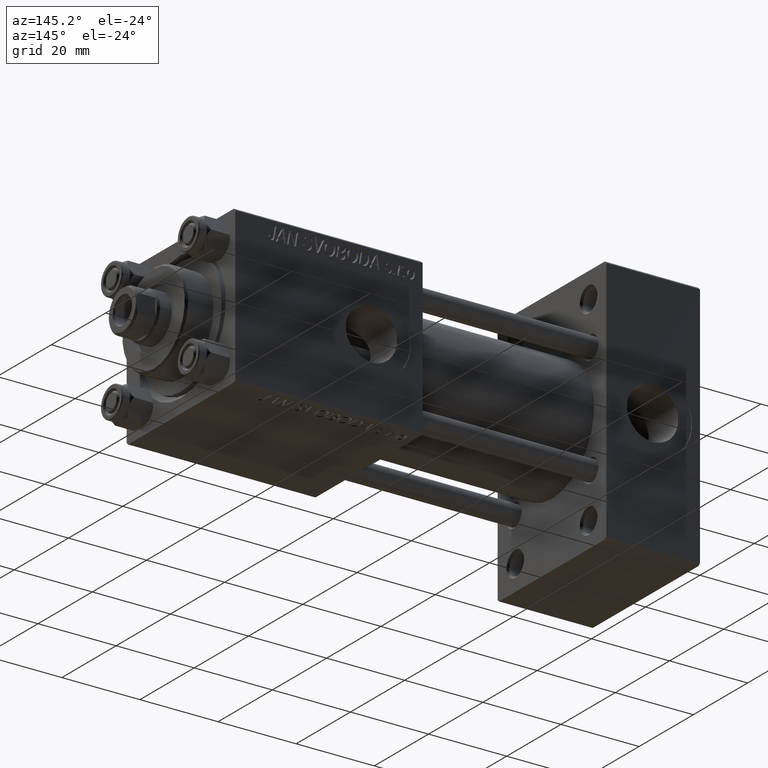
[diagram: clean part render]
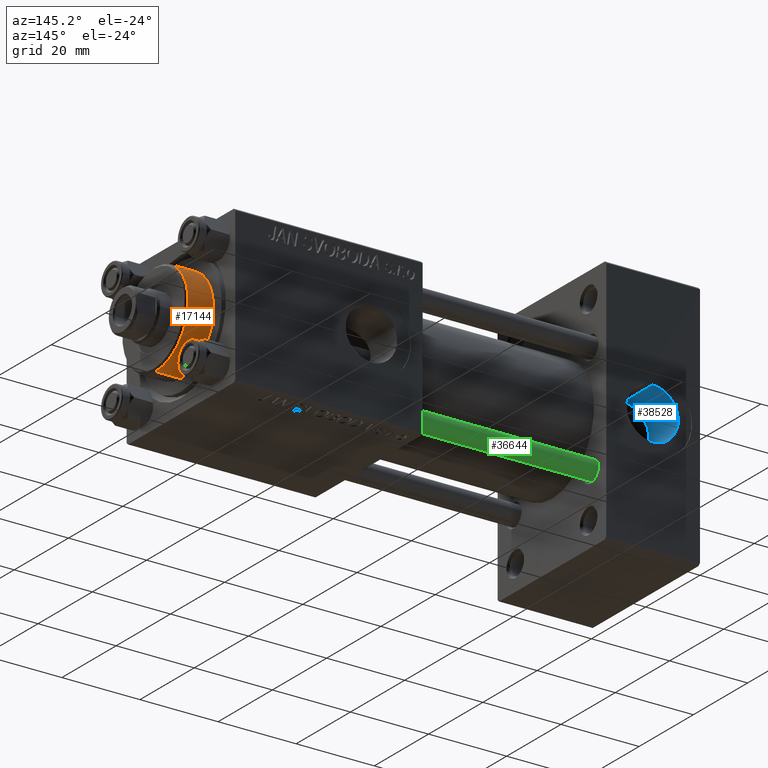
[diagram: same view with three faces highlighted in distinct colors, each labeled with its STEP entity id]
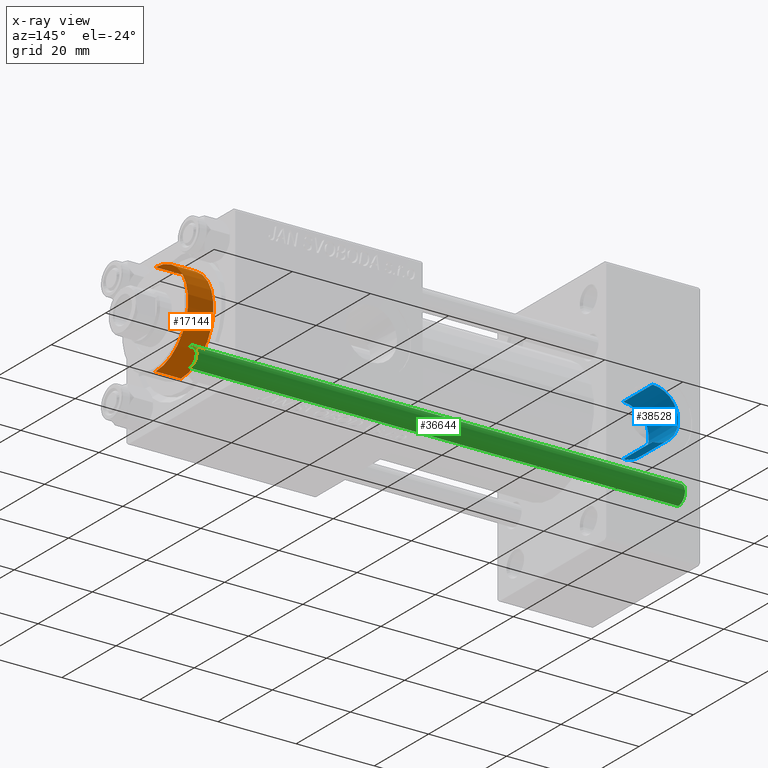
[diagram: x-ray of the same camera — body ghosted, the three highlighted faces saturated]
A machine part, auxiliary view with three faces highlighted in distinct colors.
The next image is the same camera in x-ray (body ghosted, the three faces saturated) — at least one of them is partly hidden behind the body in this view.
Their STEP definitions:

[orange] entity #17144 — the highlighted cylindrical surface (partial cylindrical patch) has radius 12 mm, axis along (-1, -0, 0).
#4748 = DIRECTION ( 'NONE',  ( 1.000000000000000000, 0.000000000000000000, 0.000000000000000000 ) ) ;
#5452 = DIRECTION ( 'NONE',  ( -0.000000000000000000, -0.000000000000000000, -1.000000000000000000 ) ) ;
#5938 = EDGE_LOOP ( 'NONE', ( #49564, #40014, #39124, #9059 ) ) ;
#5982 = DIRECTION ( 'NONE',  ( 0.000000000000000000, 0.000000000000000000, 1.000000000000000000 ) ) ;
#6105 = DIRECTION ( 'NONE',  ( -0.000000000000000000, -0.000000000000000000, -1.000000000000000000 ) ) ;
#6506 = EDGE_CURVE ( 'NONE', #17289, #29973, #47359, .T. ) ;
#8108 = CARTESIAN_POINT ( 'NONE',  ( 12.00000000000000178, 1.469576158976824144E-15, 35.70000000000000284 ) ) ;
#8427 = CIRCLE ( 'NONE', #36640, 12.00000000000000178 ) ;
#8535 = DIRECTION ( 'NONE',  ( 0.000000000000000000, 0.000000000000000000, -1.000000000000000000 ) ) ;
#9059 = ORIENTED_EDGE ( 'NONE', *, *, #6506, .F. ) ;
#13620 = CARTESIAN_POINT ( 'NONE',  ( 12.00000000000000178, 1.469576158976824144E-15, 35.19999999999999574 ) ) ;
#15570 = CARTESIAN_POINT ( 'NONE',  ( 12.00000000000000178, 1.469576158976824144E-15, 28.69999999999999929 ) ) ;
#17144 = ADVANCED_FACE ( 'NONE', ( #17715 ), #22237, .T. ) ;
#17289 = VERTEX_POINT ( 'NONE', #42178 ) ;
#17490 = VERTEX_POINT ( 'NONE', #13620 ) ;
#17715 = FACE_OUTER_BOUND ( 'NONE', #5938, .T. ) ;
#19854 = CIRCLE ( 'NONE', #39227, 12.00000000000000178 ) ;
#22237 = CYLINDRICAL_SURFACE ( 'NONE', #33957, 12.00000000000000178 ) ;
#22548 = CARTESIAN_POINT ( 'NONE',  ( 0.000000000000000000, 0.000000000000000000, 28.69999999999999929 ) ) ;
#23458 = VERTEX_POINT ( 'NONE', #15570 ) ;
#24629 = CARTESIAN_POINT ( 'NONE',  ( -12.00000000000000178, 0.000000000000000000, 35.70000000000000284 ) ) ;
#27535 = DIRECTION ( 'NONE',  ( -0.000000000000000000, -0.000000000000000000, -1.000000000000000000 ) ) ;
#28830 = CARTESIAN_POINT ( 'NONE',  ( 0.000000000000000000, 0.000000000000000000, 35.70000000000000284 ) ) ;
#29728 = VECTOR ( 'NONE', #5452, 1000.000000000000000 ) ;
#29973 = VERTEX_POINT ( 'NONE', #37152 ) ;
#33957 = AXIS2_PLACEMENT_3D ( 'NONE', #28830, #6105, #49251 ) ;
#33973 = EDGE_CURVE ( 'NONE', #23458, #29973, #19854, .T. ) ;
#35870 = LINE ( 'NONE', #8108, #48706 ) ;
#36640 = AXIS2_PLACEMENT_3D ( 'NONE', #46901, #8535, #4748 ) ;
#37152 = CARTESIAN_POINT ( 'NONE',  ( -12.00000000000000178, 0.000000000000000000, 28.69999999999999929 ) ) ;
#38745 = EDGE_CURVE ( 'NONE', #17490, #23458, #35870, .T. ) ;
#39124 = ORIENTED_EDGE ( 'NONE', *, *, #33973, .T. ) ;
#39227 = AXIS2_PLACEMENT_3D ( 'NONE', #22548, #5982, #45773 ) ;
#39951 = EDGE_CURVE ( 'NONE', #17289, #17490, #8427, .T. ) ;
#40014 = ORIENTED_EDGE ( 'NONE', *, *, #38745, .T. ) ;
#42178 = CARTESIAN_POINT ( 'NONE',  ( -12.00000000000000178, 0.000000000000000000, 35.19999999999999574 ) ) ;
#45773 = DIRECTION ( 'NONE',  ( 1.000000000000000000, 0.000000000000000000, 0.000000000000000000 ) ) ;
#46901 = CARTESIAN_POINT ( 'NONE',  ( 0.000000000000000000, 0.000000000000000000, 35.19999999999999574 ) ) ;
#47359 = LINE ( 'NONE', #24629, #29728 ) ;
#48706 = VECTOR ( 'NONE', #27535, 1000.000000000000000 ) ;
#49251 = DIRECTION ( 'NONE',  ( -1.000000000000000000, 0.000000000000000000, 0.000000000000000000 ) ) ;
#49564 = ORIENTED_EDGE ( 'NONE', *, *, #39951, .T. ) ;

[blue] entity #38528 — the highlighted cylindrical surface (edge-blend (fillet) strip) has radius 6.58 mm, axis along (0, 1, 0).
#395 = CARTESIAN_POINT ( 'NONE',  ( 12.00000000000000000, 8.999999999999998224, 6.579999999999998295 ) ) ;
#4408 = CIRCLE ( 'NONE', #43962, 6.579999999999998295 ) ;
#4442 = DIRECTION ( 'NONE',  ( -0.000000000000000000, -1.000000000000000000, -0.000000000000000000 ) ) ;
#4747 = LINE ( 'NONE', #11382, #22384 ) ;
#7555 = VERTEX_POINT ( 'NONE', #24463 ) ;
#8385 = AXIS2_PLACEMENT_3D ( 'NONE', #44989, #25536, #40946 ) ;
#9590 = CARTESIAN_POINT ( 'NONE',  ( 12.00000000000000000, 19.79999999999999716, -6.579999999999998295 ) ) ;
#11382 = CARTESIAN_POINT ( 'NONE',  ( 12.00000000000000000, 8.999999999999998224, -6.579999999999998295 ) ) ;
#15108 = DIRECTION ( 'NONE',  ( 0.000000000000000000, 1.000000000000000000, 0.000000000000000000 ) ) ;
#16465 = CARTESIAN_POINT ( 'NONE',  ( 12.00000000000000000, 8.939999999999994174, 6.579999999999998295 ) ) ;
#17437 = VERTEX_POINT ( 'NONE', #9590 ) ;
#17942 = EDGE_CURVE ( 'NONE', #42800, #7555, #35491, .T. ) ;
#19463 = VECTOR ( 'NONE', #35995, 1000.000000000000000 ) ;
#19878 = DIRECTION ( 'NONE',  ( -0.000000000000000000, 1.000000000000000000, -0.000000000000000000 ) ) ;
#22384 = VECTOR ( 'NONE', #19878, 1000.000000000000000 ) ;
#23090 = ORIENTED_EDGE ( 'NONE', *, *, #31416, .T. ) ;
#24463 = CARTESIAN_POINT ( 'NONE',  ( 12.00000000000000000, 19.79999999999999716, 6.579999999999998295 ) ) ;
#25536 = DIRECTION ( 'NONE',  ( -0.000000000000000000, 1.000000000000000000, -0.000000000000000000 ) ) ;
#25964 = CARTESIAN_POINT ( 'NONE',  ( 12.00000000000000000, 19.79999999999999716, 0.000000000000000000 ) ) ;
#27834 = CARTESIAN_POINT ( 'NONE',  ( 12.00000000000000000, 8.939999999999994174, -6.579999999999998295 ) ) ;
#28813 = ORIENTED_EDGE ( 'NONE', *, *, #17942, .F. ) ;
#29329 = CYLINDRICAL_SURFACE ( 'NONE', #8385, 6.579999999999998295 ) ;
#30321 = EDGE_CURVE ( 'NONE', #17437, #7555, #4408, .T. ) ;
#31416 = EDGE_CURVE ( 'NONE', #42800, #35655, #41561, .T. ) ;
#34015 = ORIENTED_EDGE ( 'NONE', *, *, #46848, .T. ) ;
#35491 = LINE ( 'NONE', #395, #19463 ) ;
#35655 = VERTEX_POINT ( 'NONE', #27834 ) ;
#35995 = DIRECTION ( 'NONE',  ( -0.000000000000000000, 1.000000000000000000, -0.000000000000000000 ) ) ;
#38528 = ADVANCED_FACE ( 'NONE', ( #48758 ), #29329, .F. ) ;
#39960 = AXIS2_PLACEMENT_3D ( 'NONE', #42321, #4442, #46602 ) ;
#40946 = DIRECTION ( 'NONE',  ( 0.000000000000000000, 0.000000000000000000, 1.000000000000000000 ) ) ;
#41368 = DIRECTION ( 'NONE',  ( 0.000000000000000000, 0.000000000000000000, 1.000000000000000000 ) ) ;
#41561 = CIRCLE ( 'NONE', #39960, 6.579999999999998295 ) ;
#42118 = ORIENTED_EDGE ( 'NONE', *, *, #30321, .T. ) ;
#42321 = CARTESIAN_POINT ( 'NONE',  ( 12.00000000000000000, 8.939999999999994174, 0.000000000000000000 ) ) ;
#42800 = VERTEX_POINT ( 'NONE', #16465 ) ;
#43962 = AXIS2_PLACEMENT_3D ( 'NONE', #25964, #15108, #41368 ) ;
#44989 = CARTESIAN_POINT ( 'NONE',  ( 12.00000000000000000, 8.999999999999998224, 0.000000000000000000 ) ) ;
#46602 = DIRECTION ( 'NONE',  ( 0.000000000000000000, 0.000000000000000000, 1.000000000000000000 ) ) ;
#46848 = EDGE_CURVE ( 'NONE', #35655, #17437, #4747, .T. ) ;
#48481 = EDGE_LOOP ( 'NONE', ( #23090, #34015, #42118, #28813 ) ) ;
#48758 = FACE_OUTER_BOUND ( 'NONE', #48481, .T. ) ;

[green] entity #36644 — the highlighted cylindrical surface (edge-blend (fillet) strip) has radius 2.5 mm, axis along (-1, 0, 0).
#800 = DIRECTION ( 'NONE',  ( 1.000000000000000000, 0.000000000000000000, 0.000000000000000000 ) ) ;
#1739 = VERTEX_POINT ( 'NONE', #37545 ) ;
#4772 = ORIENTED_EDGE ( 'NONE', *, *, #26746, .F. ) ;
#6667 = AXIS2_PLACEMENT_3D ( 'NONE', #26803, #12157, #800 ) ;
#8428 = CARTESIAN_POINT ( 'NONE',  ( -2.500000000000000000, 0.000000000000000000, 126.0000000000000000 ) ) ;
#9583 = CIRCLE ( 'NONE', #16026, 2.500000000000000000 ) ;
#9880 = CARTESIAN_POINT ( 'NONE',  ( -2.500000000000000000, 0.000000000000000000, 125.5000000000000568 ) ) ;
#9943 = ORIENTED_EDGE ( 'NONE', *, *, #11782, .T. ) ;
#10415 = VERTEX_POINT ( 'NONE', #9880 ) ;
#11782 = EDGE_CURVE ( 'NONE', #41797, #10415, #9583, .T. ) ;
#12083 = DIRECTION ( 'NONE',  ( -0.000000000000000000, -0.000000000000000000, -1.000000000000000000 ) ) ;
#12157 = DIRECTION ( 'NONE',  ( -0.000000000000000000, -0.000000000000000000, 1.000000000000000000 ) ) ;
#12448 = DIRECTION ( 'NONE',  ( -0.000000000000000000, -0.000000000000000000, -1.000000000000000000 ) ) ;
#13456 = EDGE_LOOP ( 'NONE', ( #4772, #9943, #32532, #18764 ) ) ;
#15178 = CARTESIAN_POINT ( 'NONE',  ( -2.500000000000000000, 0.000000000000000000, 0.5000000000000004441 ) ) ;
#16026 = AXIS2_PLACEMENT_3D ( 'NONE', #27221, #42379, #38833 ) ;
#18764 = ORIENTED_EDGE ( 'NONE', *, *, #24744, .T. ) ;
#23040 = VECTOR ( 'NONE', #27359, 1000.000000000000000 ) ;
#23300 = DIRECTION ( 'NONE',  ( -1.000000000000000000, 0.000000000000000000, 0.000000000000000000 ) ) ;
#24744 = EDGE_CURVE ( 'NONE', #26361, #1739, #37344, .T. ) ;
#26361 = VERTEX_POINT ( 'NONE', #15178 ) ;
#26746 = EDGE_CURVE ( 'NONE', #41797, #1739, #35559, .T. ) ;
#26803 = CARTESIAN_POINT ( 'NONE',  ( 0.000000000000000000, 0.000000000000000000, 0.5000000000000004441 ) ) ;
#27178 = AXIS2_PLACEMENT_3D ( 'NONE', #31867, #12448, #23300 ) ;
#27221 = CARTESIAN_POINT ( 'NONE',  ( 0.000000000000000000, 0.000000000000000000, 125.5000000000000568 ) ) ;
#27359 = DIRECTION ( 'NONE',  ( -0.000000000000000000, -0.000000000000000000, -1.000000000000000000 ) ) ;
#29094 = CARTESIAN_POINT ( 'NONE',  ( 2.500000000000000000, 3.061616997868383141E-16, 125.5000000000000568 ) ) ;
#31614 = CYLINDRICAL_SURFACE ( 'NONE', #27178, 2.500000000000000000 ) ;
#31754 = CARTESIAN_POINT ( 'NONE',  ( 2.500000000000000000, 3.061616997868383141E-16, 126.0000000000000000 ) ) ;
#31867 = CARTESIAN_POINT ( 'NONE',  ( 0.000000000000000000, 0.000000000000000000, 126.0000000000000000 ) ) ;
#32532 = ORIENTED_EDGE ( 'NONE', *, *, #42394, .T. ) ;
#34691 = LINE ( 'NONE', #8428, #23040 ) ;
#35559 = LINE ( 'NONE', #31754, #46246 ) ;
#36644 = ADVANCED_FACE ( 'NONE', ( #42997 ), #31614, .T. ) ;
#37344 = CIRCLE ( 'NONE', #6667, 2.500000000000000000 ) ;
#37545 = CARTESIAN_POINT ( 'NONE',  ( 2.500000000000000000, 3.061616997868383141E-16, 0.5000000000000004441 ) ) ;
#38833 = DIRECTION ( 'NONE',  ( 1.000000000000000000, 0.000000000000000000, 0.000000000000000000 ) ) ;
#41797 = VERTEX_POINT ( 'NONE', #29094 ) ;
#42379 = DIRECTION ( 'NONE',  ( 0.000000000000000000, 0.000000000000000000, -1.000000000000000000 ) ) ;
#42394 = EDGE_CURVE ( 'NONE', #10415, #26361, #34691, .T. ) ;
#42997 = FACE_OUTER_BOUND ( 'NONE', #13456, .T. ) ;
#46246 = VECTOR ( 'NONE', #12083, 1000.000000000000000 ) ;